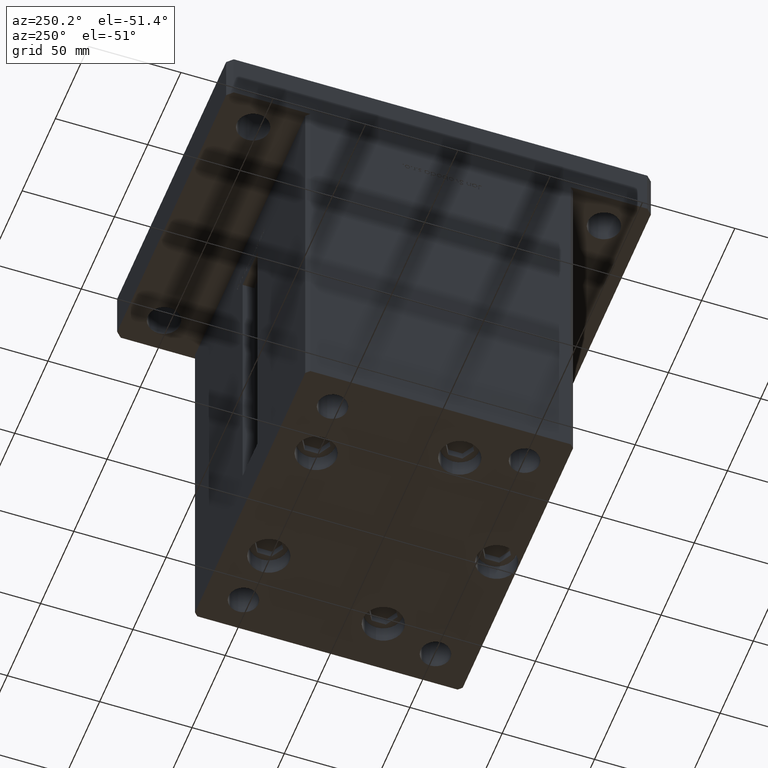
[diagram: clean part render]
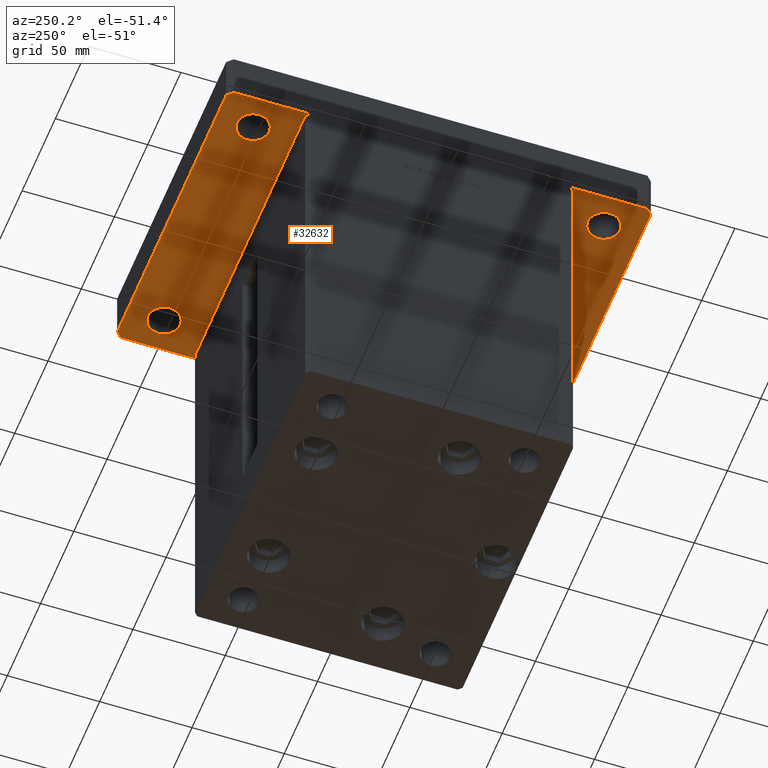
[diagram: same view with one face highlighted and labeled with its STEP entity id]
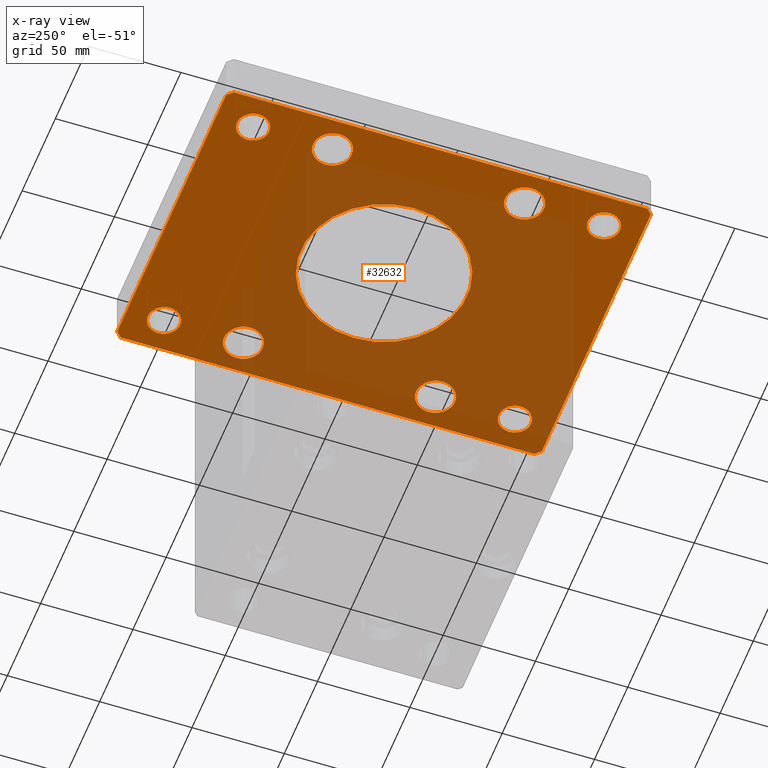
[diagram: x-ray of the same camera — body ghosted, the highlighted face saturated]
A machine part, auxiliary view. The second image highlights one B-rep face of the part: STEP entity #32632.
The next image is the same camera in x-ray: the body ghosted, the highlighted face saturated — about 57% of this face is hidden behind the body in this view.
In plain terms, the highlighted planar face has unit normal (0, 0, 1).
Its self-contained STEP definition (entity closure, byte-faithful):
#182 = CARTESIAN_POINT ( 'NONE',  ( 66.99999999999997158, -95.00000000000001421, 0.000000000000000000 ) ) ;
#287 = DIRECTION ( 'NONE',  ( 1.000000000000000000, 0.000000000000000000, 0.000000000000000000 ) ) ;
#352 = ORIENTED_EDGE ( 'NONE', *, *, #28354, .T. ) ;
#442 = AXIS2_PLACEMENT_3D ( 'NONE', #23714, #40234, #32123 ) ;
#527 = DIRECTION ( 'NONE',  ( 0.000000000000000000, 0.000000000000000000, 1.000000000000000000 ) ) ;
#600 = CARTESIAN_POINT ( 'NONE',  ( -84.99999999999998579, -112.0000000000000142, 0.000000000000000000 ) ) ;
#794 = EDGE_CURVE ( 'NONE', #6266, #27818, #46678, .T. ) ;
#823 = ORIENTED_EDGE ( 'NONE', *, *, #50156, .F. ) ;
#1079 = EDGE_CURVE ( 'NONE', #33892, #14857, #51664, .T. ) ;
#1095 = FACE_BOUND ( 'NONE', #32532, .T. ) ;
#1609 = AXIS2_PLACEMENT_3D ( 'NONE', #22660, #39168, #24712 ) ;
#1625 = ORIENTED_EDGE ( 'NONE', *, *, #45658, .T. ) ;
#1686 = CIRCLE ( 'NONE', #3385, 8.750000000000007105 ) ;
#2154 = CIRCLE ( 'NONE', #19432, 8.750000000000007105 ) ;
#2237 = VERTEX_POINT ( 'NONE', #35306 ) ;
#2360 = ORIENTED_EDGE ( 'NONE', *, *, #38542, .F. ) ;
#2540 = DIRECTION ( 'NONE',  ( -1.000000000000000000, 0.000000000000000000, 0.000000000000000000 ) ) ;
#2560 = VERTEX_POINT ( 'NONE', #39832 ) ;
#2653 = AXIS2_PLACEMENT_3D ( 'NONE', #6919, #31819, #35874 ) ;
#2656 = DIRECTION ( 'NONE',  ( 0.000000000000000000, 0.000000000000000000, 1.000000000000000000 ) ) ;
#3315 = VERTEX_POINT ( 'NONE', #11989 ) ;
#3385 = AXIS2_PLACEMENT_3D ( 'NONE', #4767, #42932, #25872 ) ;
#4347 = EDGE_LOOP ( 'NONE', ( #42492, #37447 ) ) ;
#4767 = CARTESIAN_POINT ( 'NONE',  ( 67.00000000000000000, 94.99999999999997158, 0.000000000000000000 ) ) ;
#4825 = DIRECTION ( 'NONE',  ( 1.239088197126290570E-16, -1.000000000000000000, 0.000000000000000000 ) ) ;
#4943 = DIRECTION ( 'NONE',  ( 0.7071067811865474617, -0.7071067811865474617, 0.000000000000000000 ) ) ;
#5148 = DIRECTION ( 'NONE',  ( 1.000000000000000000, 0.000000000000000000, 0.000000000000000000 ) ) ;
#5299 = EDGE_CURVE ( 'NONE', #23331, #10824, #28135, .T. ) ;
#5344 = CARTESIAN_POINT ( 'NONE',  ( -75.74999999999998579, -95.00000000000001421, 0.000000000000000000 ) ) ;
#5378 = DIRECTION ( 'NONE',  ( -1.000000000000000000, -1.692413147294444984E-16, 0.000000000000000000 ) ) ;
#5588 = ORIENTED_EDGE ( 'NONE', *, *, #5299, .T. ) ;
#5693 = EDGE_CURVE ( 'NONE', #18592, #46596, #11694, .T. ) ;
#5940 = CARTESIAN_POINT ( 'NONE',  ( -66.99999999999997158, -95.00000000000001421, 0.000000000000000000 ) ) ;
#6266 = VERTEX_POINT ( 'NONE', #44131 ) ;
#6382 = AXIS2_PLACEMENT_3D ( 'NONE', #46865, #18133, #43058 ) ;
#6421 = VECTOR ( 'NONE', #39334, 1000.000000000000000 ) ;
#6813 = EDGE_LOOP ( 'NONE', ( #352, #44991 ) ) ;
#6919 = CARTESIAN_POINT ( 'NONE',  ( -67.00000000000000000, 52.00000000000001421, 0.000000000000000000 ) ) ;
#7255 = DIRECTION ( 'NONE',  ( 1.000000000000000000, 0.000000000000000000, 0.000000000000000000 ) ) ;
#7444 = EDGE_CURVE ( 'NONE', #35459, #24663, #2154, .T. ) ;
#7651 = VECTOR ( 'NONE', #46965, 1000.000000000000114 ) ;
#7858 = ORIENTED_EDGE ( 'NONE', *, *, #12819, .T. ) ;
#8155 = CARTESIAN_POINT ( 'NONE',  ( -45.00000000000000711, 0.000000000000000000, 0.000000000000000000 ) ) ;
#8724 = EDGE_CURVE ( 'NONE', #39902, #14762, #48890, .T. ) ;
#9022 = EDGE_LOOP ( 'NONE', ( #32786, #51423 ) ) ;
#9024 = DIRECTION ( 'NONE',  ( 1.000000000000000000, 0.000000000000000000, 0.000000000000000000 ) ) ;
#9551 = CIRCLE ( 'NONE', #33754, 45.00000000000000711 ) ;
#9582 = CARTESIAN_POINT ( 'NONE',  ( -81.99999999999998579, -115.0000000000000142, 0.000000000000000000 ) ) ;
#9776 = CARTESIAN_POINT ( 'NONE',  ( 85.00000000000001421, 112.0000000000000142, 0.000000000000000000 ) ) ;
#9856 = VECTOR ( 'NONE', #46824, 1000.000000000000000 ) ;
#9960 = CARTESIAN_POINT ( 'NONE',  ( -82.00000000000002842, 115.0000000000000000, 0.000000000000000000 ) ) ;
#10346 = LINE ( 'NONE', #18997, #45018 ) ;
#10453 = AXIS2_PLACEMENT_3D ( 'NONE', #44465, #18740, #47734 ) ;
#10524 = DIRECTION ( 'NONE',  ( 1.000000000000000000, 0.000000000000000000, 0.000000000000000000 ) ) ;
#10555 = FACE_OUTER_BOUND ( 'NONE', #31453, .T. ) ;
#10696 = VERTEX_POINT ( 'NONE', #32699 ) ;
#10775 = CARTESIAN_POINT ( 'NONE',  ( 58.24999999999996447, -95.00000000000001421, 0.000000000000000000 ) ) ;
#10824 = VERTEX_POINT ( 'NONE', #13181 ) ;
#11143 = AXIS2_PLACEMENT_3D ( 'NONE', #19433, #2656, #7255 ) ;
#11404 = EDGE_CURVE ( 'NONE', #2560, #35272, #52394, .T. ) ;
#11694 = CIRCLE ( 'NONE', #50625, 8.750000000000007105 ) ;
#11820 = CARTESIAN_POINT ( 'NONE',  ( 82.00000000000002842, -114.9999999999999147, 0.000000000000000000 ) ) ;
#11989 = CARTESIAN_POINT ( 'NONE',  ( 45.00000000000000711, 5.510910596163090344E-15, 0.000000000000000000 ) ) ;
#12692 = DIRECTION ( 'NONE',  ( -1.000000000000000000, 0.000000000000000000, 0.000000000000000000 ) ) ;
#12819 = EDGE_CURVE ( 'NONE', #35272, #2560, #42085, .T. ) ;
#12941 = LINE ( 'NONE', #28662, #49423 ) ;
#13181 = CARTESIAN_POINT ( 'NONE',  ( 77.50000000000001421, 52.00000000000000000, 0.000000000000000000 ) ) ;
#13810 = FACE_BOUND ( 'NONE', #51784, .T. ) ;
#13946 = DIRECTION ( 'NONE',  ( 0.000000000000000000, 0.000000000000000000, 1.000000000000000000 ) ) ;
#14601 = FACE_BOUND ( 'NONE', #27334, .T. ) ;
#14694 = VECTOR ( 'NONE', #44593, 1000.000000000000114 ) ;
#14762 = VERTEX_POINT ( 'NONE', #36045 ) ;
#14857 = VERTEX_POINT ( 'NONE', #42787 ) ;
#16671 = LINE ( 'NONE', #11820, #14694 ) ;
#16751 = CARTESIAN_POINT ( 'NONE',  ( 0.000000000000000000, 0.000000000000000000, 0.000000000000000000 ) ) ;
#17596 = EDGE_LOOP ( 'NONE', ( #41980, #34122 ) ) ;
#18133 = DIRECTION ( 'NONE',  ( 0.000000000000000000, 0.000000000000000000, 1.000000000000000000 ) ) ;
#18286 = EDGE_CURVE ( 'NONE', #37316, #2237, #32734, .T. ) ;
#18592 = VERTEX_POINT ( 'NONE', #21127 ) ;
#18740 = DIRECTION ( 'NONE',  ( 0.000000000000000000, 0.000000000000000000, 1.000000000000000000 ) ) ;
#18763 = CARTESIAN_POINT ( 'NONE',  ( -82.00000000000002842, 115.0000000000000000, 0.000000000000000000 ) ) ;
#18903 = CARTESIAN_POINT ( 'NONE',  ( -67.00000000000000000, -52.00000000000000000, 0.000000000000000000 ) ) ;
#18997 = CARTESIAN_POINT ( 'NONE',  ( 85.00000000000001421, -111.9999999999999005, 0.000000000000000000 ) ) ;
#19105 = AXIS2_PLACEMENT_3D ( 'NONE', #19825, #51788, #35801 ) ;
#19432 = AXIS2_PLACEMENT_3D ( 'NONE', #182, #40822, #24027 ) ;
#19433 = CARTESIAN_POINT ( 'NONE',  ( 67.00000000000001421, 52.00000000000000000, 0.000000000000000000 ) ) ;
#19825 = CARTESIAN_POINT ( 'NONE',  ( -67.00000000000000000, -52.00000000000000000, 0.000000000000000000 ) ) ;
#20236 = EDGE_CURVE ( 'NONE', #14762, #39902, #1686, .T. ) ;
#20298 = VERTEX_POINT ( 'NONE', #46729 ) ;
#20489 = ORIENTED_EDGE ( 'NONE', *, *, #794, .F. ) ;
#20737 = CARTESIAN_POINT ( 'NONE',  ( 67.00000000000001421, 52.00000000000000000, 0.000000000000000000 ) ) ;
#21127 = CARTESIAN_POINT ( 'NONE',  ( -75.75000000000001421, 95.00000000000001421, 0.000000000000000000 ) ) ;
#21645 = AXIS2_PLACEMENT_3D ( 'NONE', #18903, #42773, #39225 ) ;
#22178 = DIRECTION ( 'NONE',  ( 0.000000000000000000, 0.000000000000000000, 1.000000000000000000 ) ) ;
#22202 = FACE_BOUND ( 'NONE', #4347, .T. ) ;
#22325 = ORIENTED_EDGE ( 'NONE', *, *, #27133, .F. ) ;
#22545 = ORIENTED_EDGE ( 'NONE', *, *, #20236, .T. ) ;
#22660 = CARTESIAN_POINT ( 'NONE',  ( 67.00000000000001421, -52.00000000000000000, 0.000000000000000000 ) ) ;
#23070 = ORIENTED_EDGE ( 'NONE', *, *, #1079, .F. ) ;
#23331 = VERTEX_POINT ( 'NONE', #40240 ) ;
#23714 = CARTESIAN_POINT ( 'NONE',  ( 67.00000000000000000, 94.99999999999997158, 0.000000000000000000 ) ) ;
#23798 = VERTEX_POINT ( 'NONE', #41068 ) ;
#24027 = DIRECTION ( 'NONE',  ( 1.000000000000000000, 0.000000000000000000, 0.000000000000000000 ) ) ;
#24077 = DIRECTION ( 'NONE',  ( 0.000000000000000000, 0.000000000000000000, -1.000000000000000000 ) ) ;
#24621 = EDGE_CURVE ( 'NONE', #10824, #23331, #33661, .T. ) ;
#24663 = VERTEX_POINT ( 'NONE', #10775 ) ;
#24712 = DIRECTION ( 'NONE',  ( 1.000000000000000000, 0.000000000000000000, 0.000000000000000000 ) ) ;
#25191 = CIRCLE ( 'NONE', #32126, 45.00000000000000711 ) ;
#25872 = DIRECTION ( 'NONE',  ( 1.000000000000000000, 0.000000000000000000, 0.000000000000000000 ) ) ;
#26616 = ORIENTED_EDGE ( 'NONE', *, *, #11404, .T. ) ;
#26675 = VERTEX_POINT ( 'NONE', #46991 ) ;
#26882 = CIRCLE ( 'NONE', #48492, 10.50000000000000178 ) ;
#26893 = AXIS2_PLACEMENT_3D ( 'NONE', #28733, #53100, #287 ) ;
#27133 = EDGE_CURVE ( 'NONE', #14857, #32873, #50583, .T. ) ;
#27314 = EDGE_CURVE ( 'NONE', #27818, #10696, #16671, .T. ) ;
#27334 = EDGE_LOOP ( 'NONE', ( #5588, #45591 ) ) ;
#27818 = VERTEX_POINT ( 'NONE', #45868 ) ;
#28135 = CIRCLE ( 'NONE', #49737, 10.49999999999999467 ) ;
#28354 = EDGE_CURVE ( 'NONE', #32280, #23798, #41575, .T. ) ;
#28662 = CARTESIAN_POINT ( 'NONE',  ( -85.00000000000001421, 112.0000000000000000, 0.000000000000000000 ) ) ;
#28733 = CARTESIAN_POINT ( 'NONE',  ( -67.00000000000000000, 95.00000000000001421, 0.000000000000000000 ) ) ;
#29060 = AXIS2_PLACEMENT_3D ( 'NONE', #39480, #48152, #10524 ) ;
#29596 = EDGE_CURVE ( 'NONE', #23798, #32280, #26882, .T. ) ;
#29609 = CARTESIAN_POINT ( 'NONE',  ( -67.00000000000000000, 95.00000000000001421, 0.000000000000000000 ) ) ;
#29786 = CARTESIAN_POINT ( 'NONE',  ( 67.00000000000001421, -52.00000000000000000, 0.000000000000000000 ) ) ;
#29927 = EDGE_CURVE ( 'NONE', #20298, #26675, #41621, .T. ) ;
#29945 = EDGE_CURVE ( 'NONE', #24663, #35459, #49367, .T. ) ;
#30274 = AXIS2_PLACEMENT_3D ( 'NONE', #29786, #527, #5148 ) ;
#30332 = ORIENTED_EDGE ( 'NONE', *, *, #18286, .T. ) ;
#30346 = FACE_BOUND ( 'NONE', #9022, .T. ) ;
#30445 = CARTESIAN_POINT ( 'NONE',  ( 77.50000000000001421, -52.00000000000000000, 0.000000000000000000 ) ) ;
#30483 = DIRECTION ( 'NONE',  ( 1.000000000000000000, 0.000000000000000000, 0.000000000000000000 ) ) ;
#30972 = LINE ( 'NONE', #18763, #7651 ) ;
#31453 = EDGE_LOOP ( 'NONE', ( #20489, #2360, #823, #43850, #22325, #23070, #36038, #40377 ) ) ;
#31735 = DIRECTION ( 'NONE',  ( 0.000000000000000000, 1.000000000000000000, 0.000000000000000000 ) ) ;
#31819 = DIRECTION ( 'NONE',  ( 0.000000000000000000, 0.000000000000000000, 1.000000000000000000 ) ) ;
#32123 = DIRECTION ( 'NONE',  ( 1.000000000000000000, 0.000000000000000000, 0.000000000000000000 ) ) ;
#32126 = AXIS2_PLACEMENT_3D ( 'NONE', #16751, #24077, #12692 ) ;
#32280 = VERTEX_POINT ( 'NONE', #36456 ) ;
#32532 = EDGE_LOOP ( 'NONE', ( #38984, #30332 ) ) ;
#32632 = ADVANCED_FACE ( 'NONE', ( #22202, #10555, #34405, #51706, #42797, #13810, #1095, #14601, #50911, #30346 ), #38717, .F. ) ;
#32699 = CARTESIAN_POINT ( 'NONE',  ( 85.00000000000001421, -111.9999999999999005, 0.000000000000000000 ) ) ;
#32734 = CIRCLE ( 'NONE', #1609, 10.49999999999999467 ) ;
#32786 = ORIENTED_EDGE ( 'NONE', *, *, #29945, .T. ) ;
#32873 = VERTEX_POINT ( 'NONE', #9960 ) ;
#33249 = VERTEX_POINT ( 'NONE', #50257 ) ;
#33489 = CARTESIAN_POINT ( 'NONE',  ( 75.75000000000001421, 94.99999999999997158, 0.000000000000000000 ) ) ;
#33619 = VERTEX_POINT ( 'NONE', #42872 ) ;
#33661 = CIRCLE ( 'NONE', #11143, 10.49999999999999467 ) ;
#33754 = AXIS2_PLACEMENT_3D ( 'NONE', #44235, #44504, #2540 ) ;
#33892 = VERTEX_POINT ( 'NONE', #9776 ) ;
#34122 = ORIENTED_EDGE ( 'NONE', *, *, #48330, .T. ) ;
#34405 = FACE_BOUND ( 'NONE', #42519, .T. ) ;
#35272 = VERTEX_POINT ( 'NONE', #5344 ) ;
#35306 = CARTESIAN_POINT ( 'NONE',  ( 56.50000000000002132, -52.00000000000000000, 0.000000000000000000 ) ) ;
#35459 = VERTEX_POINT ( 'NONE', #36165 ) ;
#35801 = DIRECTION ( 'NONE',  ( 1.000000000000000000, 0.000000000000000000, 0.000000000000000000 ) ) ;
#35874 = DIRECTION ( 'NONE',  ( 1.000000000000000000, 0.000000000000000000, 0.000000000000000000 ) ) ;
#36038 = ORIENTED_EDGE ( 'NONE', *, *, #48221, .F. ) ;
#36045 = CARTESIAN_POINT ( 'NONE',  ( 58.24999999999998579, 94.99999999999997158, 0.000000000000000000 ) ) ;
#36165 = CARTESIAN_POINT ( 'NONE',  ( 75.74999999999998579, -95.00000000000001421, 0.000000000000000000 ) ) ;
#36294 = CIRCLE ( 'NONE', #30274, 10.49999999999999467 ) ;
#36456 = CARTESIAN_POINT ( 'NONE',  ( -77.50000000000000000, 52.00000000000001421, 0.000000000000000000 ) ) ;
#37194 = VECTOR ( 'NONE', #5378, 1000.000000000000000 ) ;
#37316 = VERTEX_POINT ( 'NONE', #30445 ) ;
#37326 = EDGE_CURVE ( 'NONE', #32873, #33249, #30972, .T. ) ;
#37447 = ORIENTED_EDGE ( 'NONE', *, *, #49429, .F. ) ;
#37512 = DIRECTION ( 'NONE',  ( 1.000000000000000000, 0.000000000000000000, 0.000000000000000000 ) ) ;
#38542 = EDGE_CURVE ( 'NONE', #33619, #6266, #49888, .T. ) ;
#38717 = PLANE ( 'NONE',  #6382 ) ;
#38916 = CIRCLE ( 'NONE', #21645, 10.50000000000000178 ) ;
#38984 = ORIENTED_EDGE ( 'NONE', *, *, #45428, .T. ) ;
#39168 = DIRECTION ( 'NONE',  ( 0.000000000000000000, 0.000000000000000000, 1.000000000000000000 ) ) ;
#39225 = DIRECTION ( 'NONE',  ( 1.000000000000000000, 0.000000000000000000, 0.000000000000000000 ) ) ;
#39334 = DIRECTION ( 'NONE',  ( 1.000000000000000000, 6.769652589177783879E-16, 0.000000000000000000 ) ) ;
#39480 = CARTESIAN_POINT ( 'NONE',  ( -66.99999999999997158, -95.00000000000001421, 0.000000000000000000 ) ) ;
#39832 = CARTESIAN_POINT ( 'NONE',  ( -58.24999999999997158, -95.00000000000001421, 0.000000000000000000 ) ) ;
#39902 = VERTEX_POINT ( 'NONE', #33489 ) ;
#40045 = ORIENTED_EDGE ( 'NONE', *, *, #29927, .T. ) ;
#40234 = DIRECTION ( 'NONE',  ( 0.000000000000000000, 0.000000000000000000, 1.000000000000000000 ) ) ;
#40240 = CARTESIAN_POINT ( 'NONE',  ( 56.50000000000002132, 52.00000000000000000, 0.000000000000000000 ) ) ;
#40338 = AXIS2_PLACEMENT_3D ( 'NONE', #5940, #22178, #50087 ) ;
#40377 = ORIENTED_EDGE ( 'NONE', *, *, #27314, .F. ) ;
#40470 = ORIENTED_EDGE ( 'NONE', *, *, #8724, .T. ) ;
#40822 = DIRECTION ( 'NONE',  ( 0.000000000000000000, 0.000000000000000000, 1.000000000000000000 ) ) ;
#41068 = CARTESIAN_POINT ( 'NONE',  ( -56.50000000000000000, 52.00000000000001421, 0.000000000000000000 ) ) ;
#41575 = CIRCLE ( 'NONE', #2653, 10.50000000000000178 ) ;
#41621 = CIRCLE ( 'NONE', #19105, 10.50000000000000178 ) ;
#41980 = ORIENTED_EDGE ( 'NONE', *, *, #5693, .T. ) ;
#42085 = CIRCLE ( 'NONE', #40338, 8.750000000000007105 ) ;
#42469 = CARTESIAN_POINT ( 'NONE',  ( 82.00000000000004263, 115.0000000000000284, 0.000000000000000000 ) ) ;
#42492 = ORIENTED_EDGE ( 'NONE', *, *, #46265, .F. ) ;
#42494 = CARTESIAN_POINT ( 'NONE',  ( 85.00000000000001421, 112.0000000000000142, 0.000000000000000000 ) ) ;
#42519 = EDGE_LOOP ( 'NONE', ( #7858, #26616 ) ) ;
#42531 = VERTEX_POINT ( 'NONE', #8155 ) ;
#42773 = DIRECTION ( 'NONE',  ( 0.000000000000000000, 0.000000000000000000, 1.000000000000000000 ) ) ;
#42787 = CARTESIAN_POINT ( 'NONE',  ( 82.00000000000004263, 115.0000000000000284, 0.000000000000000000 ) ) ;
#42797 = FACE_BOUND ( 'NONE', #17596, .T. ) ;
#42872 = CARTESIAN_POINT ( 'NONE',  ( -84.99999999999998579, -112.0000000000000142, 0.000000000000000000 ) ) ;
#42932 = DIRECTION ( 'NONE',  ( 0.000000000000000000, 0.000000000000000000, 1.000000000000000000 ) ) ;
#43058 = DIRECTION ( 'NONE',  ( 1.000000000000000000, 0.000000000000000000, -0.000000000000000000 ) ) ;
#43850 = ORIENTED_EDGE ( 'NONE', *, *, #37326, .F. ) ;
#44131 = CARTESIAN_POINT ( 'NONE',  ( -81.99999999999998579, -115.0000000000000142, 0.000000000000000000 ) ) ;
#44235 = CARTESIAN_POINT ( 'NONE',  ( 0.000000000000000000, 0.000000000000000000, 0.000000000000000000 ) ) ;
#44465 = CARTESIAN_POINT ( 'NONE',  ( 66.99999999999997158, -95.00000000000001421, 0.000000000000000000 ) ) ;
#44504 = DIRECTION ( 'NONE',  ( 0.000000000000000000, 0.000000000000000000, -1.000000000000000000 ) ) ;
#44593 = DIRECTION ( 'NONE',  ( 0.7071067811865459074, 0.7071067811865491270, 0.000000000000000000 ) ) ;
#44991 = ORIENTED_EDGE ( 'NONE', *, *, #29596, .T. ) ;
#45018 = VECTOR ( 'NONE', #31735, 1000.000000000000000 ) ;
#45260 = EDGE_LOOP ( 'NONE', ( #22545, #40470 ) ) ;
#45428 = EDGE_CURVE ( 'NONE', #2237, #37316, #36294, .T. ) ;
#45506 = CARTESIAN_POINT ( 'NONE',  ( -58.24999999999999289, 95.00000000000001421, 0.000000000000000000 ) ) ;
#45591 = ORIENTED_EDGE ( 'NONE', *, *, #24621, .T. ) ;
#45652 = DIRECTION ( 'NONE',  ( 0.000000000000000000, 0.000000000000000000, 1.000000000000000000 ) ) ;
#45658 = EDGE_CURVE ( 'NONE', #26675, #20298, #38916, .T. ) ;
#45868 = CARTESIAN_POINT ( 'NONE',  ( 82.00000000000002842, -114.9999999999999147, 0.000000000000000000 ) ) ;
#46132 = DIRECTION ( 'NONE',  ( 0.000000000000000000, 0.000000000000000000, 1.000000000000000000 ) ) ;
#46265 = EDGE_CURVE ( 'NONE', #42531, #3315, #9551, .T. ) ;
#46596 = VERTEX_POINT ( 'NONE', #45506 ) ;
#46678 = LINE ( 'NONE', #9582, #6421 ) ;
#46729 = CARTESIAN_POINT ( 'NONE',  ( -77.50000000000000000, -52.00000000000000000, 0.000000000000000000 ) ) ;
#46824 = DIRECTION ( 'NONE',  ( -0.7071067811865426878, 0.7071067811865524577, 0.000000000000000000 ) ) ;
#46865 = CARTESIAN_POINT ( 'NONE',  ( 0.000000000000000000, 0.000000000000000000, 0.000000000000000000 ) ) ;
#46965 = DIRECTION ( 'NONE',  ( -0.7071067811865459074, -0.7071067811865491270, 0.000000000000000000 ) ) ;
#46991 = CARTESIAN_POINT ( 'NONE',  ( -56.50000000000000000, -52.00000000000000000, 0.000000000000000000 ) ) ;
#47734 = DIRECTION ( 'NONE',  ( 1.000000000000000000, 0.000000000000000000, 0.000000000000000000 ) ) ;
#48152 = DIRECTION ( 'NONE',  ( 0.000000000000000000, 0.000000000000000000, 1.000000000000000000 ) ) ;
#48221 = EDGE_CURVE ( 'NONE', #10696, #33892, #10346, .T. ) ;
#48330 = EDGE_CURVE ( 'NONE', #46596, #18592, #51982, .T. ) ;
#48492 = AXIS2_PLACEMENT_3D ( 'NONE', #51055, #13946, #30483 ) ;
#48890 = CIRCLE ( 'NONE', #442, 8.750000000000007105 ) ;
#49367 = CIRCLE ( 'NONE', #10453, 8.750000000000007105 ) ;
#49423 = VECTOR ( 'NONE', #4825, 1000.000000000000000 ) ;
#49429 = EDGE_CURVE ( 'NONE', #3315, #42531, #25191, .T. ) ;
#49737 = AXIS2_PLACEMENT_3D ( 'NONE', #20737, #45652, #37512 ) ;
#49888 = LINE ( 'NONE', #600, #51790 ) ;
#50087 = DIRECTION ( 'NONE',  ( 1.000000000000000000, 0.000000000000000000, 0.000000000000000000 ) ) ;
#50156 = EDGE_CURVE ( 'NONE', #33249, #33619, #12941, .T. ) ;
#50257 = CARTESIAN_POINT ( 'NONE',  ( -85.00000000000001421, 112.0000000000000000, 0.000000000000000000 ) ) ;
#50583 = LINE ( 'NONE', #42469, #37194 ) ;
#50625 = AXIS2_PLACEMENT_3D ( 'NONE', #29609, #46132, #9024 ) ;
#50911 = FACE_BOUND ( 'NONE', #6813, .T. ) ;
#51055 = CARTESIAN_POINT ( 'NONE',  ( -67.00000000000000000, 52.00000000000001421, 0.000000000000000000 ) ) ;
#51423 = ORIENTED_EDGE ( 'NONE', *, *, #7444, .T. ) ;
#51664 = LINE ( 'NONE', #42494, #9856 ) ;
#51706 = FACE_BOUND ( 'NONE', #45260, .T. ) ;
#51784 = EDGE_LOOP ( 'NONE', ( #40045, #1625 ) ) ;
#51788 = DIRECTION ( 'NONE',  ( 0.000000000000000000, 0.000000000000000000, 1.000000000000000000 ) ) ;
#51790 = VECTOR ( 'NONE', #4943, 1000.000000000000114 ) ;
#51982 = CIRCLE ( 'NONE', #26893, 8.750000000000007105 ) ;
#52394 = CIRCLE ( 'NONE', #29060, 8.750000000000007105 ) ;
#53100 = DIRECTION ( 'NONE',  ( 0.000000000000000000, 0.000000000000000000, 1.000000000000000000 ) ) ;